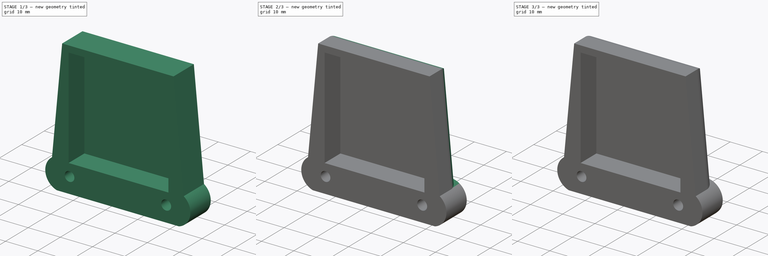
[diagram: build sequence overview — one tinted view per stage of 3, left to right]
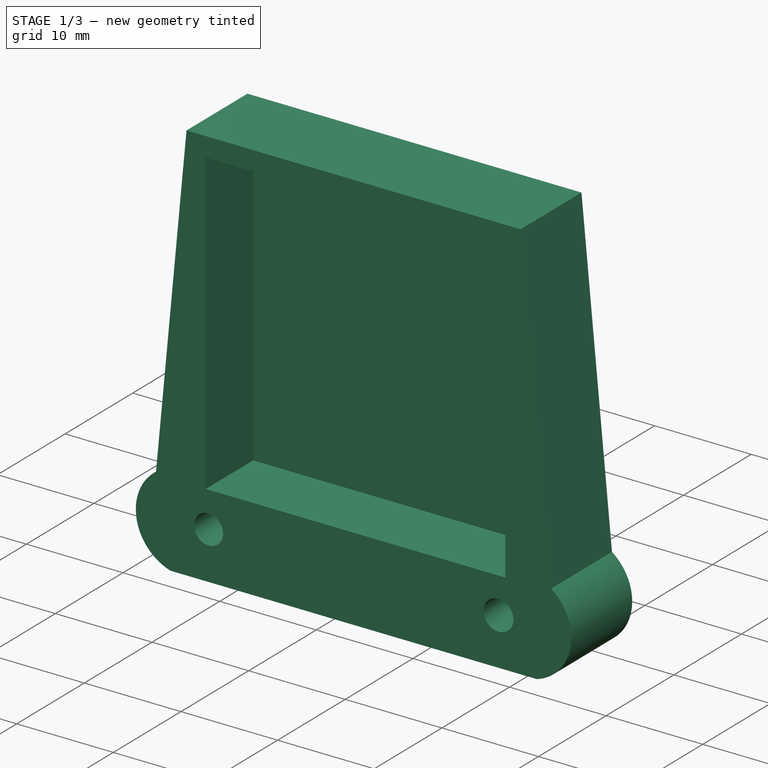
[diagram: stage 1 of 3 — iso view after this stage's code; geometry added in this stage tinted green]
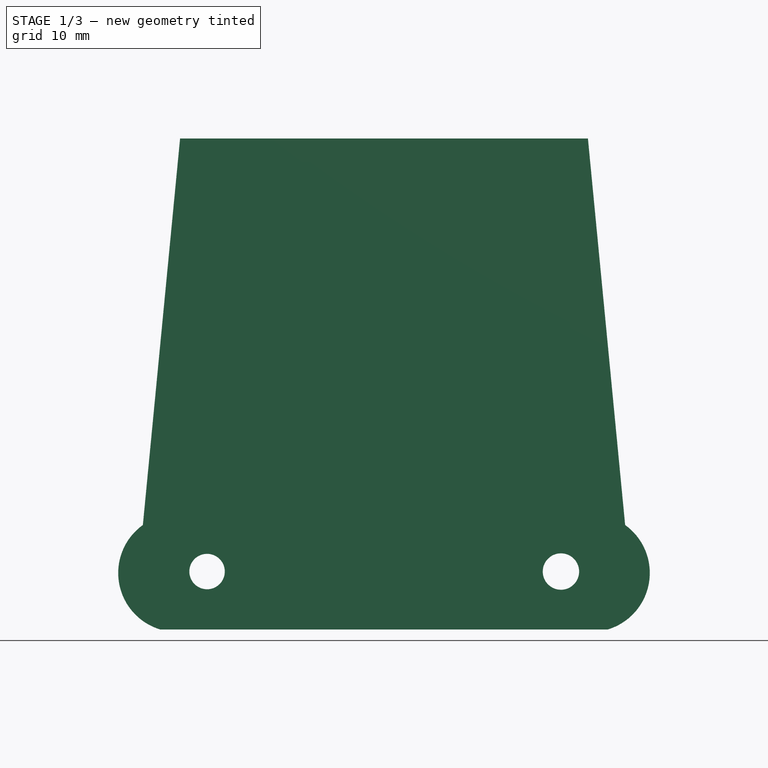
[diagram: stage 1 of 3 — front view after this stage's code; geometry added in this stage tinted green]
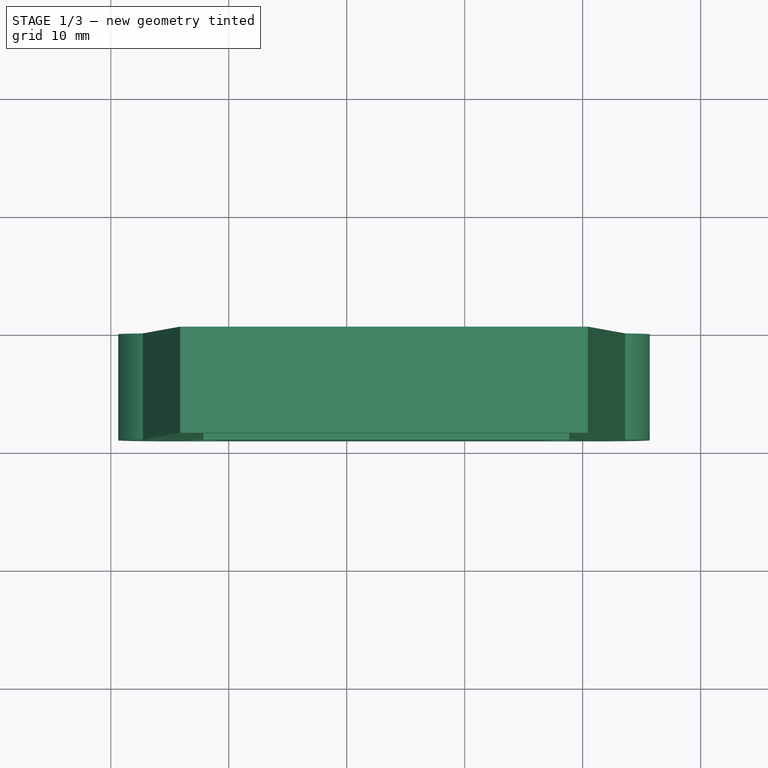
[diagram: stage 1 of 3 — top view after this stage's code; geometry added in this stage tinted green]
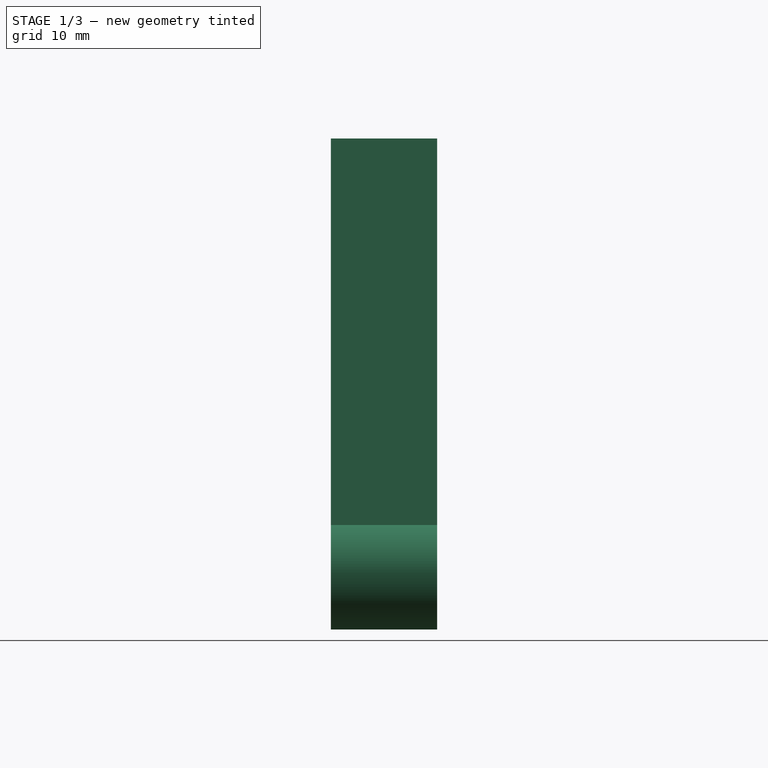
[diagram: stage 1 of 3 — right view after this stage's code; geometry added in this stage tinted green]
FCSTD DOCUMENT  (FreeCAD 0.17R13519 (Git))
Label: portaGPSinav3sopra
License: All rights reserved
LicenseURL: http://it.wikipedia.org/wiki/<copyright redacted>
objects: Sketcher::SketchObject×3, PartDesign::Pocket×2, PartDesign::Fillet×2, PartDesign::Pad×1, PartDesign::Body×1
note: 12 computed .brp shape members not serialized (recipe doc carries the construction recipe); baked Part::Feature solids carry a one-line shape summary decoded from their .brp

FEATURE [Sketcher::SketchObject] Sketch
  MapMode = 5
  Placement = pos=(0,0,0) rot=(1,0,0;1.5708rad)
  Support = -> [XZ_Plane]
  sketch-geometry (9):
    g0: ArcOfCircle CenterX=5.62653 CenterY=144.818 CenterZ=0 NormalX=0 NormalY=0 NormalZ=1 AngleXU=0 Radius=5 StartAngle=2.19197 EndAngle=4.42446
    g1: ArcOfCircle CenterX=40.6928 CenterY=144.818 CenterZ=0 NormalX=0 NormalY=0 NormalZ=1 AngleXU=0 Radius=5 StartAngle=5.00032 EndAngle=7.23281
    g2: LineSegment StartX=4.20669 StartY=140.024 StartZ=0 EndX=42.1127 EndY=140.024 EndZ=0
    g3: LineSegment StartX=2.7166 StartY=148.884 StartZ=0 EndX=5.87198 EndY=181.653 EndZ=0
    g4: LineSegment StartX=5.87198 StartY=181.653 StartZ=0 EndX=40.4474 EndY=181.653 EndZ=0
    g5: LineSegment StartX=40.4474 StartY=181.653 StartZ=0 EndX=43.6028 EndY=148.884 EndZ=0
    g6: LineSegment [constr] StartX=23.1597 StartY=134.141 StartZ=0 EndX=23.1597 EndY=178.285 EndZ=0
    g7: Circle CenterX=8.15968 CenterY=144.938 CenterZ=0 NormalX=0 NormalY=0 NormalZ=1 AngleXU=0 Radius=1.50187
    g8: Circle CenterX=38.1597 CenterY=144.938 CenterZ=0 NormalX=0 NormalY=0 NormalZ=1 AngleXU=0 Radius=1.54191
  constraints (16):
    c: Coincident(g0,g2)
    c: Coincident(g1,g2)
    c: Coincident(g4,g5)
    c: Horizontal(g2)
    c: Coincident(g5,g1)
    c: Radius(g0) = 5
    c: Equal(g0,g1)
    c: Symmetric(g0,g1,g6)
    c: Horizontal(g4)
    c: Coincident(g3,g0)
    c: Symmetric(g4,g4,g6)
    c: Coincident(g3,g4)
    c: Block(g6)
    c: DistanceX(g7,g8) = 30
    c: Symmetric(g7,g8,g6)
    c: Symmetric(g0,g1,g6)
FEATURE [PartDesign::Pad] Pad
  Length = 9
  Length2 = 100
  Placement = pos=(0,0,0) rot=(1,0,0;1.5708rad)
  Profile = -> Sketch
  Type = 0
FEATURE [Sketcher::SketchObject] Sketch003
  MapMode = 5
  Placement = pos=(0,-9,0) rot=(1,0,0;1.5708rad)
  Support = -> [Pad]
  sketch-geometry (4):
    g0: LineSegment StartX=7.86228 StartY=179.649 StartZ=0 EndX=38.8623 EndY=179.649 EndZ=0
    g1: LineSegment StartX=38.8623 StartY=179.649 StartZ=0 EndX=38.8623 EndY=148.649 EndZ=0
    g2: LineSegment StartX=38.8623 StartY=148.649 StartZ=0 EndX=7.86228 EndY=148.649 EndZ=0
    g3: LineSegment StartX=7.86228 StartY=148.649 StartZ=0 EndX=7.86228 EndY=179.649 EndZ=0
  constraints (10):
    c: Coincident(g0,g1)
    c: Coincident(g1,g2)
    c: Coincident(g2,g3)
    c: Coincident(g3,g0)
    c: Horizontal(g0)
    c: Horizontal(g2)
    c: Vertical(g1)
    c: Vertical(g3)
    c: DistanceX(g0,g0) = 31
    c: DistanceY(g3,g3) = 31
FEATURE [PartDesign::Pocket] Pocket
  BaseFeature = -> Pad
  Length = 7
  Length2 = 100
  Placement = pos=(0,0,0) rot=(1,0,0;1.5708rad)
  Profile = -> Sketch003
  Type = 0
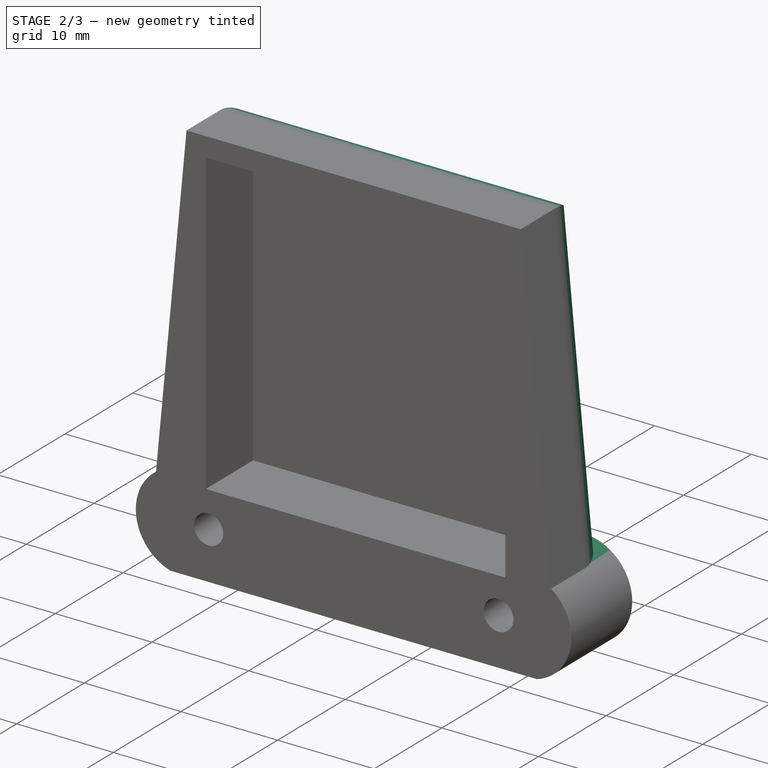
[diagram: stage 2 of 3 — iso view after this stage's code; geometry added in this stage tinted green]
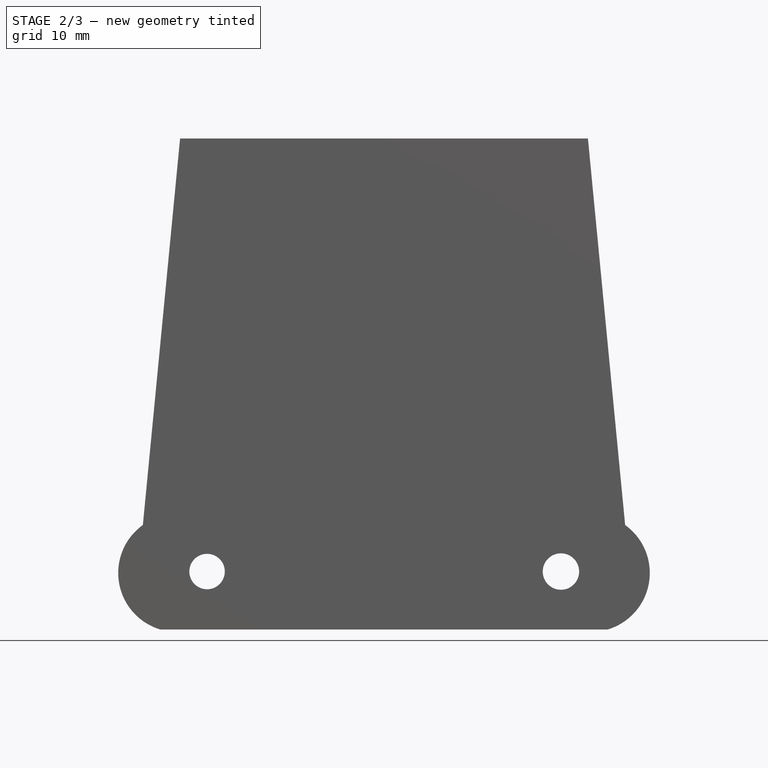
[diagram: stage 2 of 3 — front view after this stage's code; geometry added in this stage tinted green]
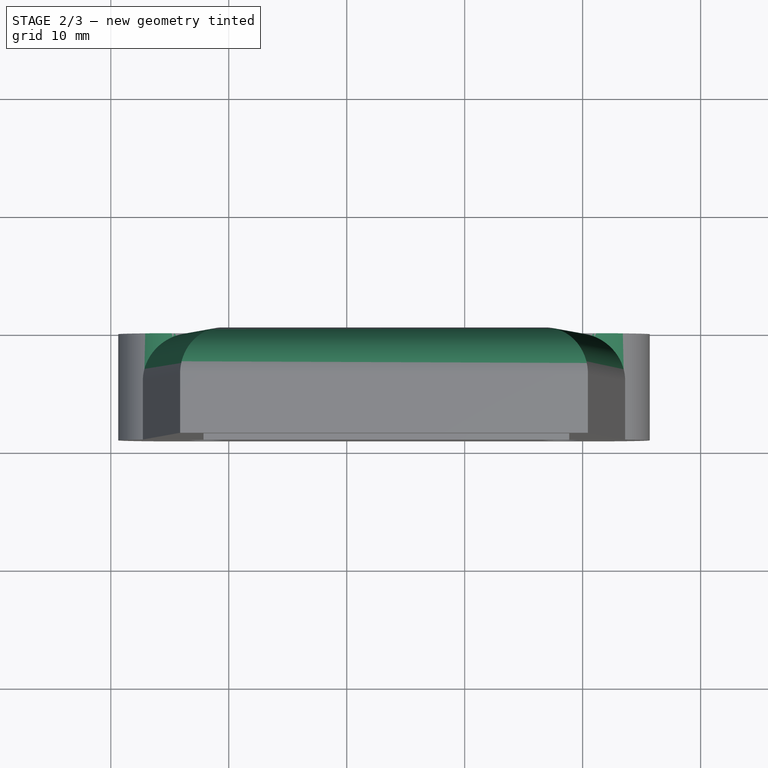
[diagram: stage 2 of 3 — top view after this stage's code; geometry added in this stage tinted green]
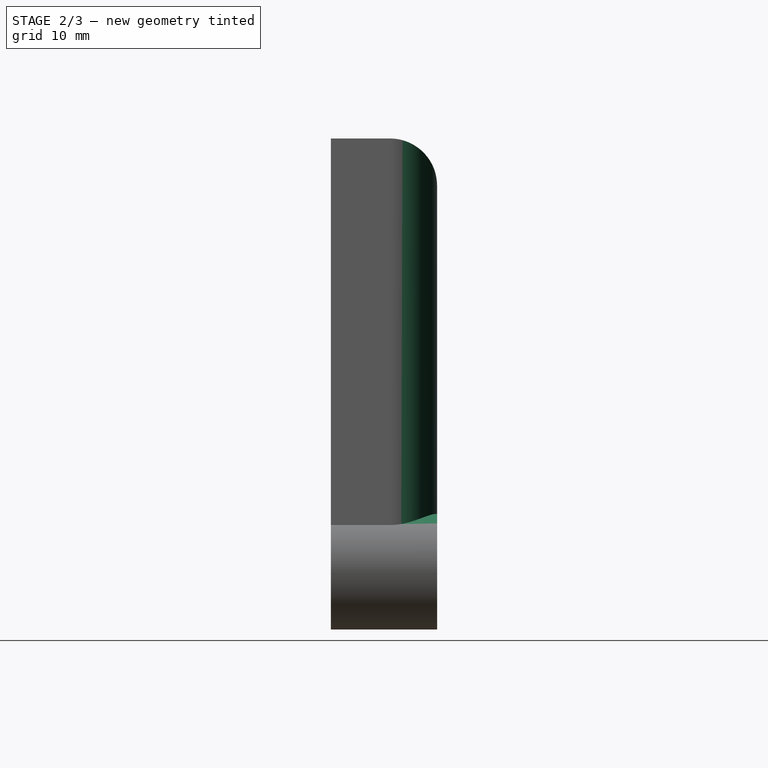
[diagram: stage 2 of 3 — right view after this stage's code; geometry added in this stage tinted green]
FEATURE [PartDesign::Fillet] Fillet
  Base = -> Pocket [Edge12,Edge13,Edge6]
  BaseFeature = -> Pocket
  Placement = pos=(0,0,0) rot=(1,0,0;1.5708rad)
  Radius = 4
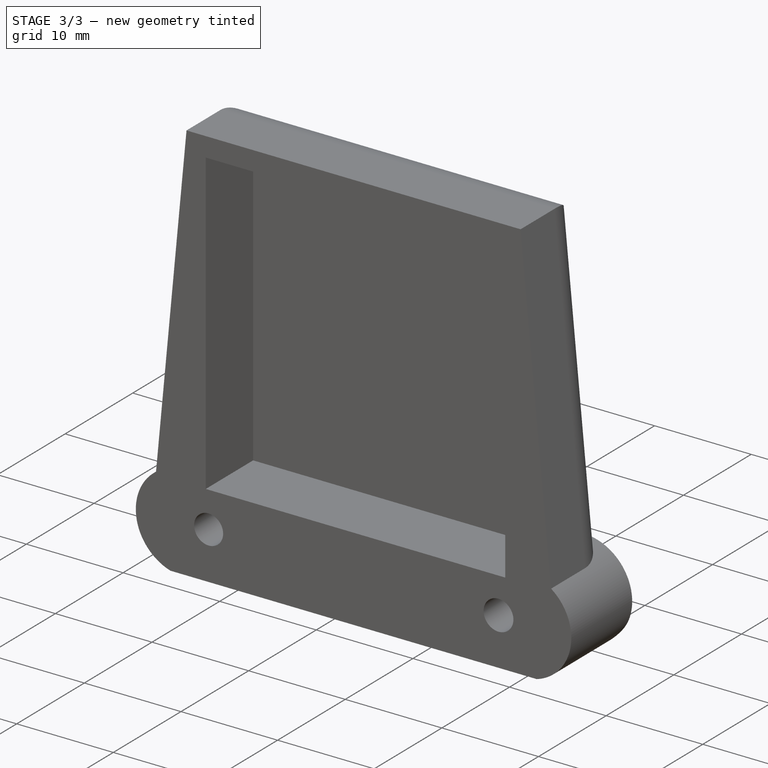
[diagram: stage 3 of 3 — iso view after this stage's code; geometry added in this stage tinted green]
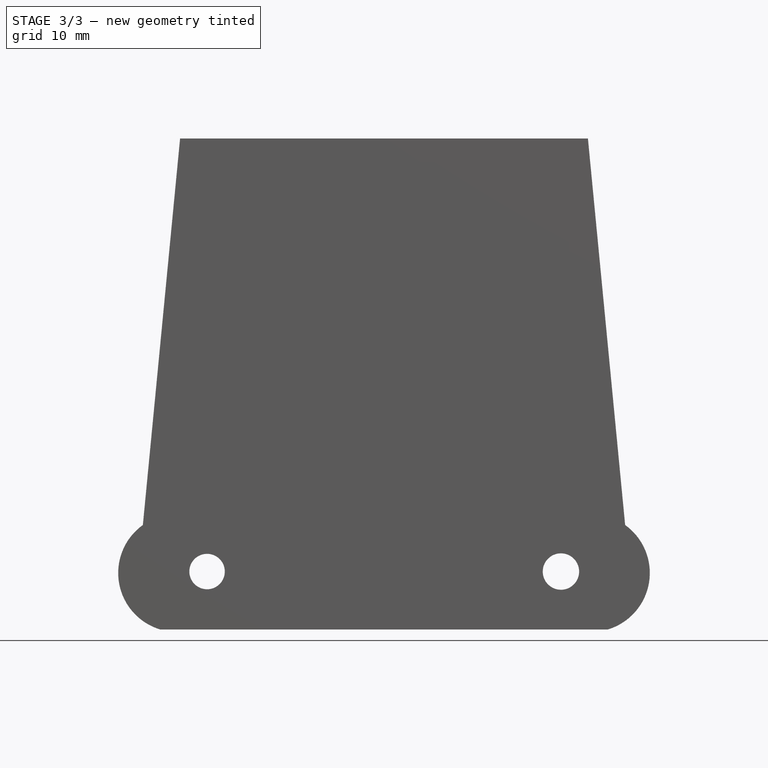
[diagram: stage 3 of 3 — front view after this stage's code; geometry added in this stage tinted green]
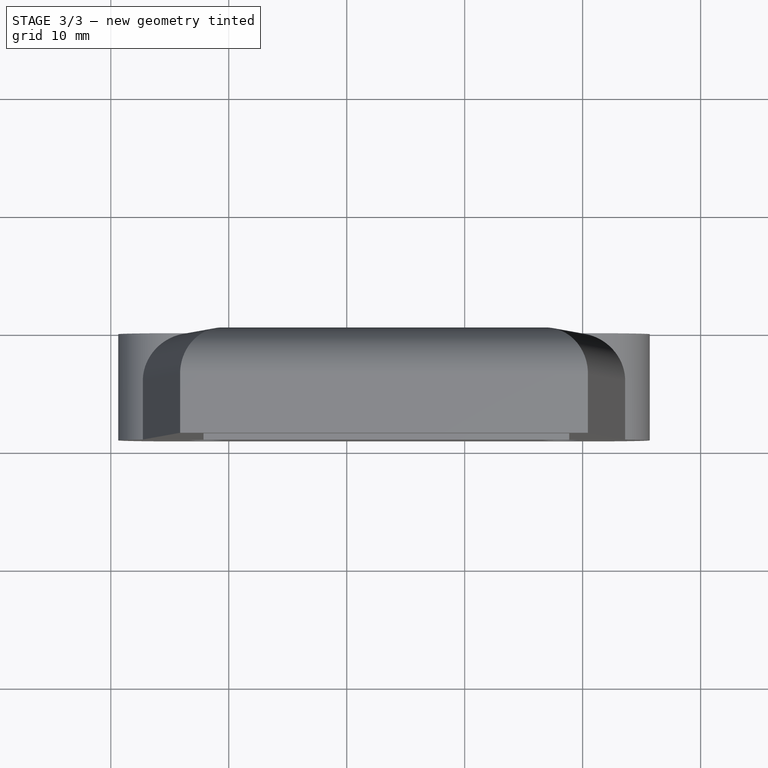
[diagram: stage 3 of 3 — top view after this stage's code; geometry added in this stage tinted green]
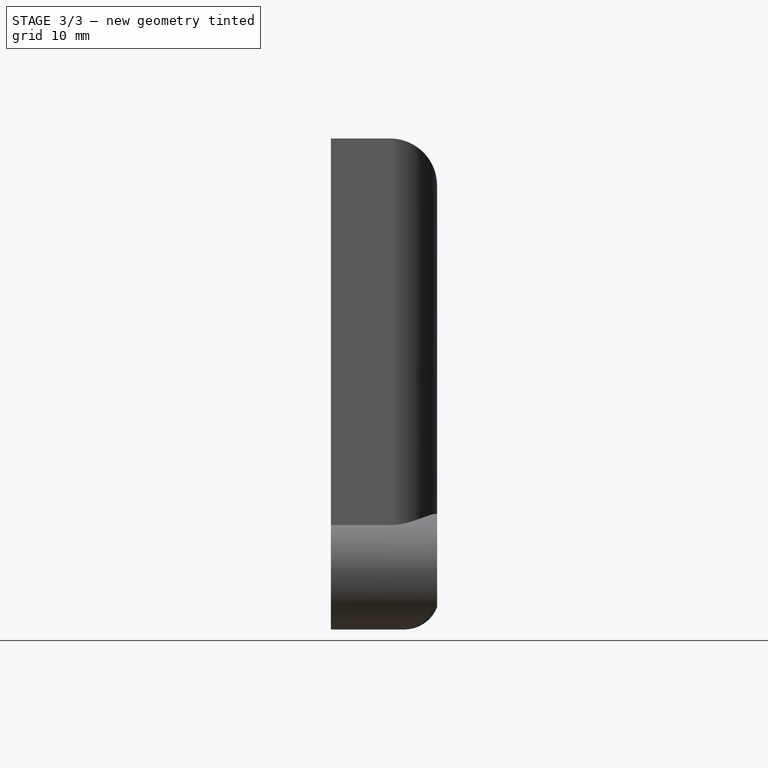
[diagram: stage 3 of 3 — right view after this stage's code; geometry added in this stage tinted green]
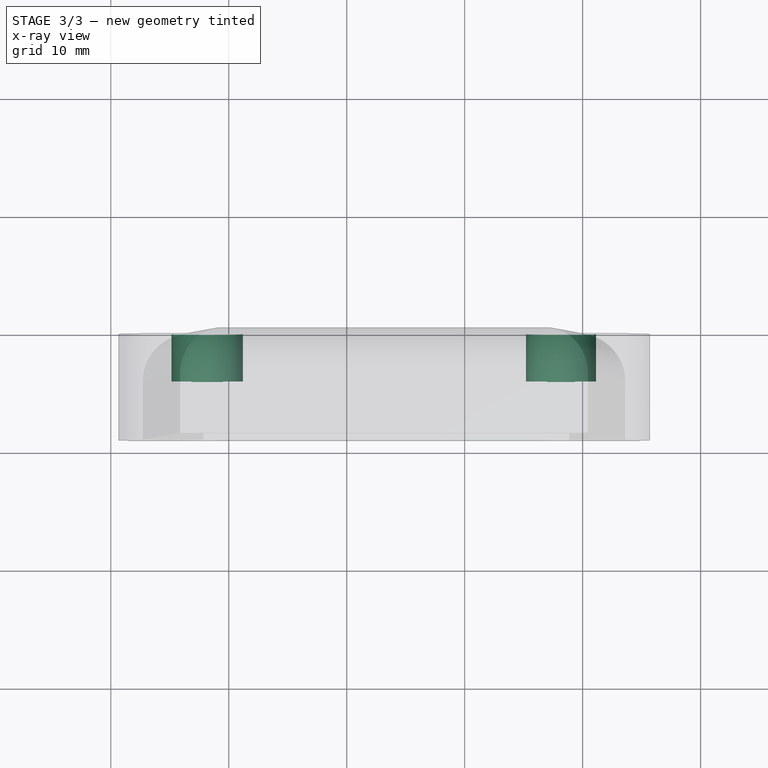
[diagram: stage 3 of 3 — x-ray composite at the top view; earlier geometry ghosted, this stage's added geometry solid]
FEATURE [Sketcher::SketchObject] Sketch004
  ExternalGeometry = -> [Fillet]
  MapMode = 5
  Placement = pos=(0,0,0) rot=(-1,0,0;1.5708rad)
  Support = -> [Fillet]
  sketch-geometry (2):
    g0: Circle CenterX=38.1597 CenterY=-144.939 CenterZ=0 NormalX=0 NormalY=0 NormalZ=1 AngleXU=0 Radius=2.96847
    g1: Circle CenterX=8.15968 CenterY=-144.939 CenterZ=0 NormalX=0 NormalY=0 NormalZ=1 AngleXU=0 Radius=3.0366
FEATURE [PartDesign::Pocket] Pocket001
  BaseFeature = -> Fillet
  Length = 4
  Length2 = 100
  Placement = pos=(0,0,0) rot=(1,0,0;1.5708rad)
  Profile = -> Sketch004
  Type = 0
FEATURE [PartDesign::Fillet] Fillet001
  Base = -> Pocket001 [Edge25]
  BaseFeature = -> Pocket001
  Placement = pos=(0,0,0) rot=(1,0,0;1.5708rad)
  Radius = 3
FEATURE [PartDesign::Body] Body
  Group = -> [Sketch,Pad,Sketch003,Pocket,Fillet,Sketch004,Pocket001,Fillet001]
  Origin = -> Origin
  Tip = -> Fillet001
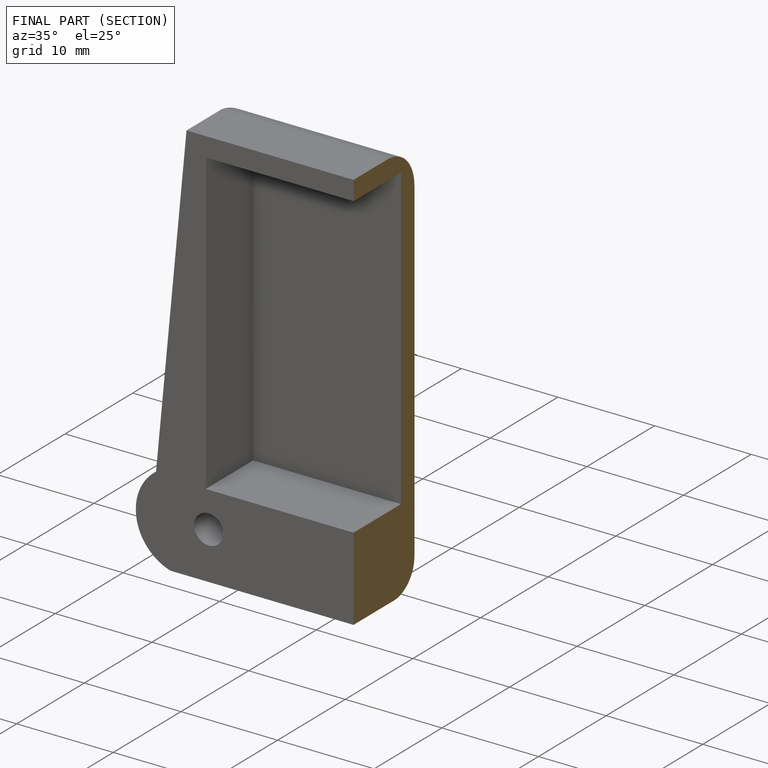
[diagram: finished part — half-section view (interior)]
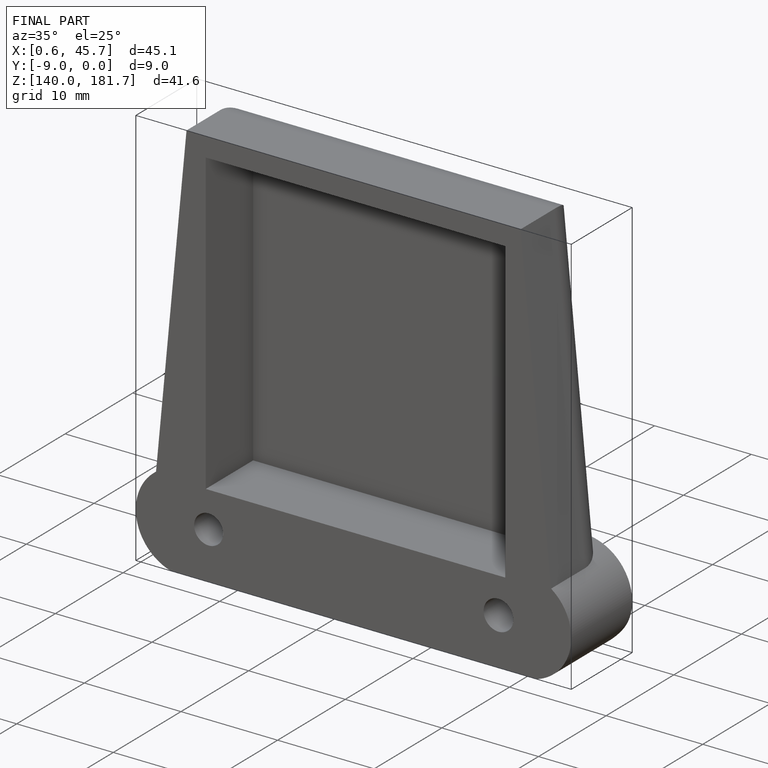
[diagram: finished part — iso view with bounding-box wireframe]
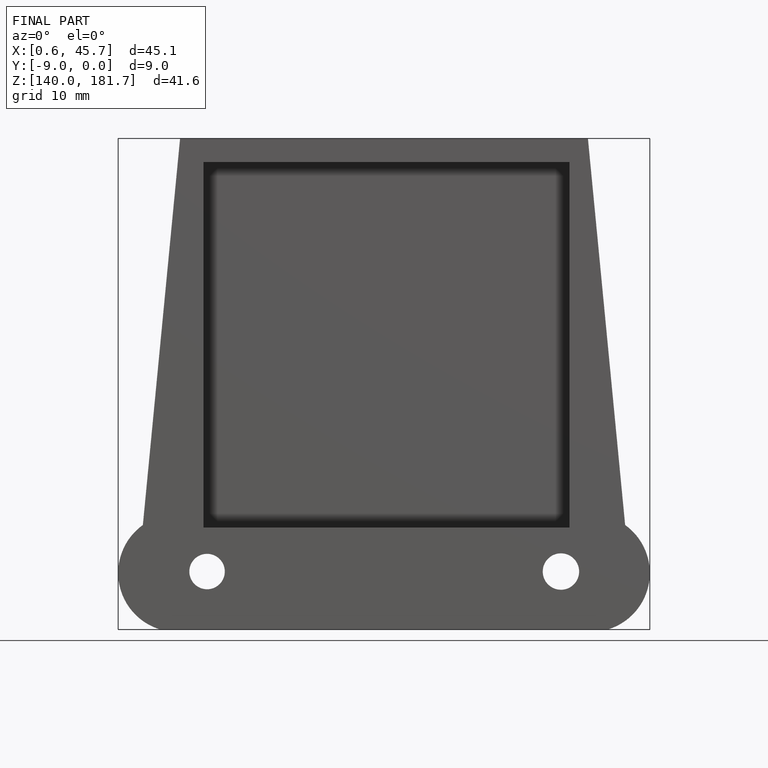
[diagram: finished part — front view with bounding-box wireframe]
